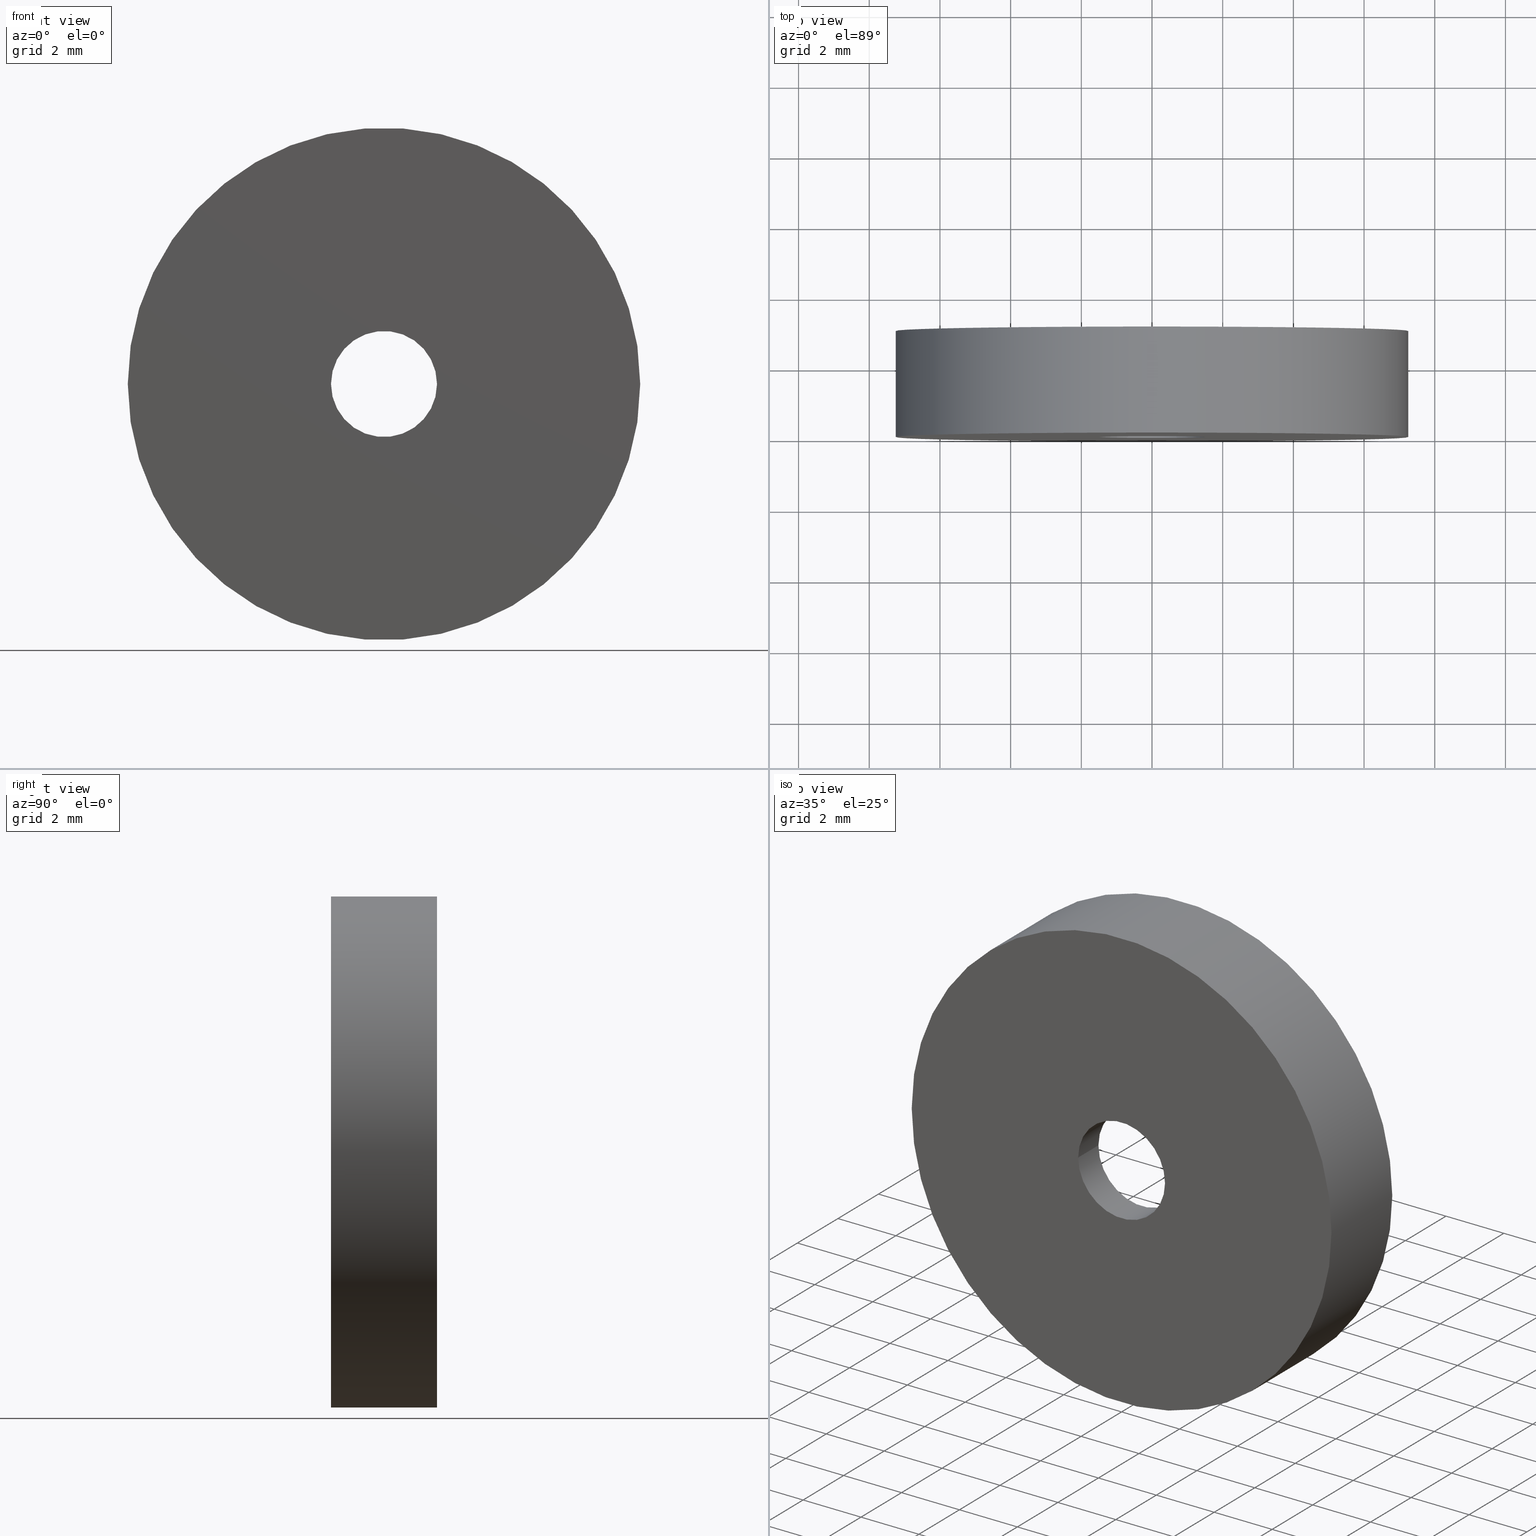
[diagram: canonical four-view strip — front | top / right | iso, engineering-drawing reading convention]
A machine part, canonical four-view strip (front | top / right | iso — engineering-drawing reading convention). The complete STEP part file that produces these views, byte-faithful:
ISO-10303-21;
HEADER;
/* Generated by software containing ST-Developer
 * from STEP Tools, Inc. (www.steptools.com) 
 */

FILE_DESCRIPTION(
/* description */ (''),
/* implementation_level */ '2;1');

FILE_NAME(
/* name */ '\\\\SYNOLOGYNAS\\web\\db2\\PR2-15-3T\\\X2\B3C4BA74\X0\\\PR
2-15-3T.stp',
/* time_stamp */ '2024-10-09T16:42:58+09:00',
/* author */ ('user'),
/* organization */ (''),
/* preprocessor_version */ 'ST-DEVELOPER v15.6',
/* originating_system */ 'Autodesk Inventor 2015',
/* authorisation */ '');

FILE_SCHEMA (('AUTOMOTIVE_DESIGN { 1 0 10303 214 3 1 1 }'));
ENDSEC;

DATA;
#10=MECHANICAL_DESIGN_GEOMETRIC_PRESENTATION_REPRESENTATION('',(#13),#143);
#11=SHAPE_REPRESENTATION_RELATIONSHIP('SRR','None',#152,#12);
#12=ADVANCED_BREP_SHAPE_REPRESENTATION($,(#14),#142);
#13=STYLED_ITEM('',(#161),#14);
#14=MANIFOLD_SOLID_BREP('\X2\C194B9ACB4DC\X0\1',#81);
#15=CYLINDRICAL_SURFACE('',#86,5.);
#16=CYLINDRICAL_SURFACE('',#88,1.5);
#17=CYLINDRICAL_SURFACE('',#90,7.25);
#18=FACE_BOUND('',#31,.T.);
#19=FACE_BOUND('',#33,.T.);
#20=FACE_BOUND('',#35,.T.);
#21=FACE_BOUND('',#37,.T.);
#22=FACE_BOUND('',#39,.T.);
#23=FACE_BOUND('',#41,.T.);
#24=FACE_OUTER_BOUND('',#30,.T.);
#25=FACE_OUTER_BOUND('',#32,.T.);
#26=FACE_OUTER_BOUND('',#34,.T.);
#27=FACE_OUTER_BOUND('',#36,.T.);
#28=FACE_OUTER_BOUND('',#38,.T.);
#29=FACE_OUTER_BOUND('',#40,.T.);
#30=EDGE_LOOP('',(#60));
#31=EDGE_LOOP('',(#61));
#32=EDGE_LOOP('',(#62));
#33=EDGE_LOOP('',(#63));
#34=EDGE_LOOP('',(#64));
#35=EDGE_LOOP('',(#65));
#36=EDGE_LOOP('',(#66));
#37=EDGE_LOOP('',(#67));
#38=EDGE_LOOP('',(#68));
#39=EDGE_LOOP('',(#69));
#40=EDGE_LOOP('',(#70));
#41=EDGE_LOOP('',(#71));
#42=CIRCLE('',#84,5.);
#43=CIRCLE('',#85,1.5);
#44=CIRCLE('',#87,5.);
#45=CIRCLE('',#89,1.5);
#46=CIRCLE('',#91,7.25);
#47=CIRCLE('',#92,7.25);
#48=VERTEX_POINT('',#123);
#49=VERTEX_POINT('',#125);
#50=VERTEX_POINT('',#128);
#51=VERTEX_POINT('',#131);
#52=VERTEX_POINT('',#134);
#53=VERTEX_POINT('',#136);
#54=EDGE_CURVE('',#48,#48,#42,.T.);
#55=EDGE_CURVE('',#49,#49,#43,.T.);
#56=EDGE_CURVE('',#50,#50,#44,.T.);
#57=EDGE_CURVE('',#51,#51,#45,.T.);
#58=EDGE_CURVE('',#52,#52,#46,.T.);
#59=EDGE_CURVE('',#53,#53,#47,.T.);
#60=ORIENTED_EDGE('',*,*,#54,.T.);
#61=ORIENTED_EDGE('',*,*,#55,.F.);
#62=ORIENTED_EDGE('',*,*,#56,.F.);
#63=ORIENTED_EDGE('',*,*,#54,.F.);
#64=ORIENTED_EDGE('',*,*,#55,.T.);
#65=ORIENTED_EDGE('',*,*,#57,.F.);
#66=ORIENTED_EDGE('',*,*,#58,.F.);
#67=ORIENTED_EDGE('',*,*,#59,.F.);
#68=ORIENTED_EDGE('',*,*,#58,.T.);
#69=ORIENTED_EDGE('',*,*,#56,.T.);
#70=ORIENTED_EDGE('',*,*,#59,.T.);
#71=ORIENTED_EDGE('',*,*,#57,.T.);
#72=PLANE('',#83);
#73=PLANE('',#93);
#74=PLANE('',#94);
#75=ADVANCED_FACE('',(#24,#18),#72,.T.);
#76=ADVANCED_FACE('',(#25,#19),#15,.F.);
#77=ADVANCED_FACE('',(#26,#20),#16,.F.);
#78=ADVANCED_FACE('',(#27,#21),#17,.T.);
#79=ADVANCED_FACE('',(#28,#22),#73,.T.);
#80=ADVANCED_FACE('',(#29,#23),#74,.F.);
#81=CLOSED_SHELL('',(#75,#76,#77,#78,#79,#80));
#82=AXIS2_PLACEMENT_3D('placement',#121,#95,#96);
#83=AXIS2_PLACEMENT_3D('',#122,#97,#98);
#84=AXIS2_PLACEMENT_3D('',#124,#99,#100);
#85=AXIS2_PLACEMENT_3D('',#126,#101,#102);
#86=AXIS2_PLACEMENT_3D('',#127,#103,#104);
#87=AXIS2_PLACEMENT_3D('',#129,#105,#106);
#88=AXIS2_PLACEMENT_3D('',#130,#107,#108);
#89=AXIS2_PLACEMENT_3D('',#132,#109,#110);
#90=AXIS2_PLACEMENT_3D('',#133,#111,#112);
#91=AXIS2_PLACEMENT_3D('',#135,#113,#114);
#92=AXIS2_PLACEMENT_3D('',#137,#115,#116);
#93=AXIS2_PLACEMENT_3D('',#138,#117,#118);
#94=AXIS2_PLACEMENT_3D('',#139,#119,#120);
#95=DIRECTION('axis',(0.,0.,1.));
#96=DIRECTION('refdir',(1.,0.,0.));
#97=DIRECTION('center_axis',(0.,1.,0.));
#98=DIRECTION('ref_axis',(-1.,0.,0.));
#99=DIRECTION('center_axis',(0.,1.,0.));
#100=DIRECTION('ref_axis',(-1.,0.,0.));
#101=DIRECTION('center_axis',(0.,1.,0.));
#102=DIRECTION('ref_axis',(-1.,0.,0.));
#103=DIRECTION('center_axis',(0.,1.,0.));
#104=DIRECTION('ref_axis',(-1.,0.,0.));
#105=DIRECTION('center_axis',(0.,-1.,0.));
#106=DIRECTION('ref_axis',(-1.,0.,0.));
#107=DIRECTION('center_axis',(0.,1.,0.));
#108=DIRECTION('ref_axis',(-1.,0.,0.));
#109=DIRECTION('center_axis',(0.,1.,0.));
#110=DIRECTION('ref_axis',(-1.,0.,0.));
#111=DIRECTION('center_axis',(0.,1.,0.));
#112=DIRECTION('ref_axis',(1.,0.,0.));
#113=DIRECTION('center_axis',(0.,1.,0.));
#114=DIRECTION('ref_axis',(1.,0.,0.));
#115=DIRECTION('center_axis',(0.,-1.,0.));
#116=DIRECTION('ref_axis',(1.,0.,0.));
#117=DIRECTION('center_axis',(0.,1.,0.));
#118=DIRECTION('ref_axis',(0.,0.,1.));
#119=DIRECTION('center_axis',(0.,1.,0.));
#120=DIRECTION('ref_axis',(0.,0.,1.));
#121=CARTESIAN_POINT('',(0.,0.,0.));
#122=CARTESIAN_POINT('Origin',(0.,1.,0.));
#123=CARTESIAN_POINT('',(-5.,1.,0.));
#124=CARTESIAN_POINT('Origin',(0.,1.,0.));
#125=CARTESIAN_POINT('',(1.5,1.,-1.83697019872103E-16));
#126=CARTESIAN_POINT('Origin',(0.,1.,0.));
#127=CARTESIAN_POINT('Origin',(0.,2.,0.));
#128=CARTESIAN_POINT('',(-5.,3.,0.));
#129=CARTESIAN_POINT('Origin',(0.,3.,0.));
#130=CARTESIAN_POINT('Origin',(0.,1.5,0.));
#131=CARTESIAN_POINT('',(-1.5,0.,0.));
#132=CARTESIAN_POINT('Origin',(0.,0.,0.));
#133=CARTESIAN_POINT('Origin',(0.,0.,0.));
#134=CARTESIAN_POINT('',(-7.25,3.,8.87868929381831E-16));
#135=CARTESIAN_POINT('Origin',(0.,3.,0.));
#136=CARTESIAN_POINT('',(-7.25,0.,8.87868929381831E-16));
#137=CARTESIAN_POINT('Origin',(0.,0.,0.));
#138=CARTESIAN_POINT('Origin',(3.29212761270361E-16,3.,1.27611841910938E-16));
#139=CARTESIAN_POINT('Origin',(3.29212761270361E-16,0.,1.27611841910938E-16));
#140=UNCERTAINTY_MEASURE_WITH_UNIT(LENGTH_MEASURE(0.01),#144,
'DISTANCE_ACCURACY_VALUE',
'Maximum model space distance between geometric entities at asserted c
onnectivities');
#141=UNCERTAINTY_MEASURE_WITH_UNIT(LENGTH_MEASURE(1.E-6),#144,
'DISTANCE_ACCURACY_VALUE',
'Maximum model space distance between geometric entities at asserted c
onnectivities');
#142=(
GEOMETRIC_REPRESENTATION_CONTEXT(3)
GLOBAL_UNCERTAINTY_ASSIGNED_CONTEXT((#140))
GLOBAL_UNIT_ASSIGNED_CONTEXT((#144,#147,#145))
REPRESENTATION_CONTEXT('','3D')
);
#143=(
GEOMETRIC_REPRESENTATION_CONTEXT(3)
GLOBAL_UNCERTAINTY_ASSIGNED_CONTEXT((#141))
GLOBAL_UNIT_ASSIGNED_CONTEXT((#144,#147,#145))
REPRESENTATION_CONTEXT('','3D')
);
#144=(
LENGTH_UNIT()
NAMED_UNIT(*)
SI_UNIT(.MILLI.,.METRE.)
);
#145=(
NAMED_UNIT(*)
SI_UNIT($,.STERADIAN.)
SOLID_ANGLE_UNIT()
);
#146=DIMENSIONAL_EXPONENTS(0.,0.,0.,0.,0.,0.,0.);
#147=(
CONVERSION_BASED_UNIT('degree',#149)
NAMED_UNIT(#146)
PLANE_ANGLE_UNIT()
);
#148=(
NAMED_UNIT(*)
PLANE_ANGLE_UNIT()
SI_UNIT($,.RADIAN.)
);
#149=PLANE_ANGLE_MEASURE_WITH_UNIT(PLANE_ANGLE_MEASURE(0.01745329252),#148);
#150=SHAPE_DEFINITION_REPRESENTATION(#151,#152);
#151=PRODUCT_DEFINITION_SHAPE('',$,#154);
#152=SHAPE_REPRESENTATION('',(#82),#142);
#153=PRODUCT_DEFINITION_CONTEXT('part definition',#158,'design');
#154=PRODUCT_DEFINITION('PR2-15-3T','PR2-15-3T',#155,#153);
#155=PRODUCT_DEFINITION_FORMATION('',$,#160);
#156=PRODUCT_RELATED_PRODUCT_CATEGORY('PR2-15-3T','PR2-15-3T',(#160));
#157=APPLICATION_PROTOCOL_DEFINITION('international standard',
'automotive_design',2009,#158);
#158=APPLICATION_CONTEXT(
'Core Data for Automotive Mechanical Design Process');
#159=PRODUCT_CONTEXT('part definition',#158,'mechanical');
#160=PRODUCT('PR2-15-3T','PR2-15-3T',$,(#159));
#161=PRESENTATION_STYLE_ASSIGNMENT((#162));
#162=SURFACE_STYLE_USAGE(.BOTH.,#163);
#163=SURFACE_SIDE_STYLE($,(#164));
#164=SURFACE_STYLE_FILL_AREA(#165);
#165=FILL_AREA_STYLE($,(#166));
#166=FILL_AREA_STYLE_COLOUR($,#167);
#167=COLOUR_RGB('',1.,1.,1.);
ENDSEC;
END-ISO-10303-21;
